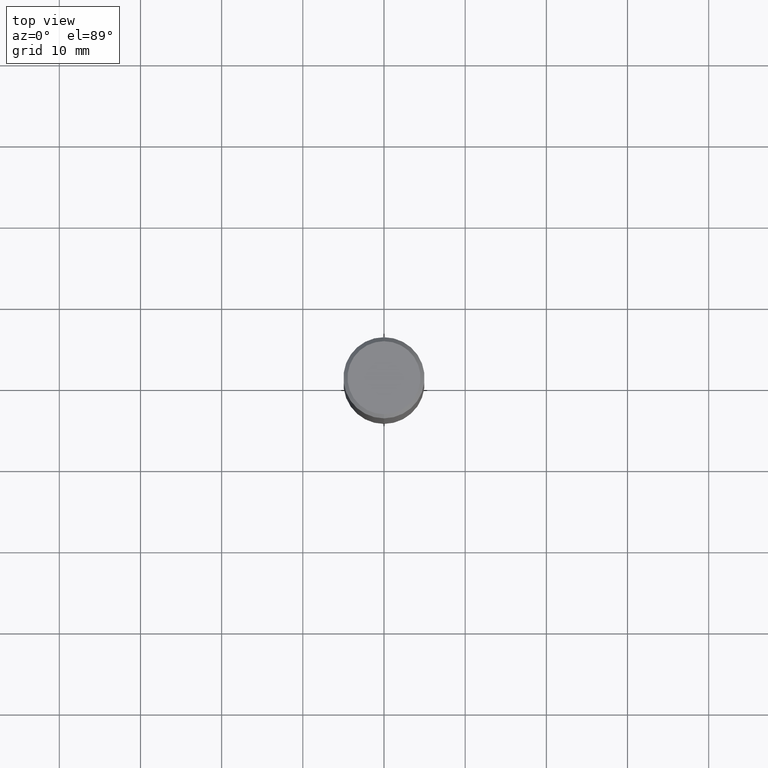
[diagram: clean part render]
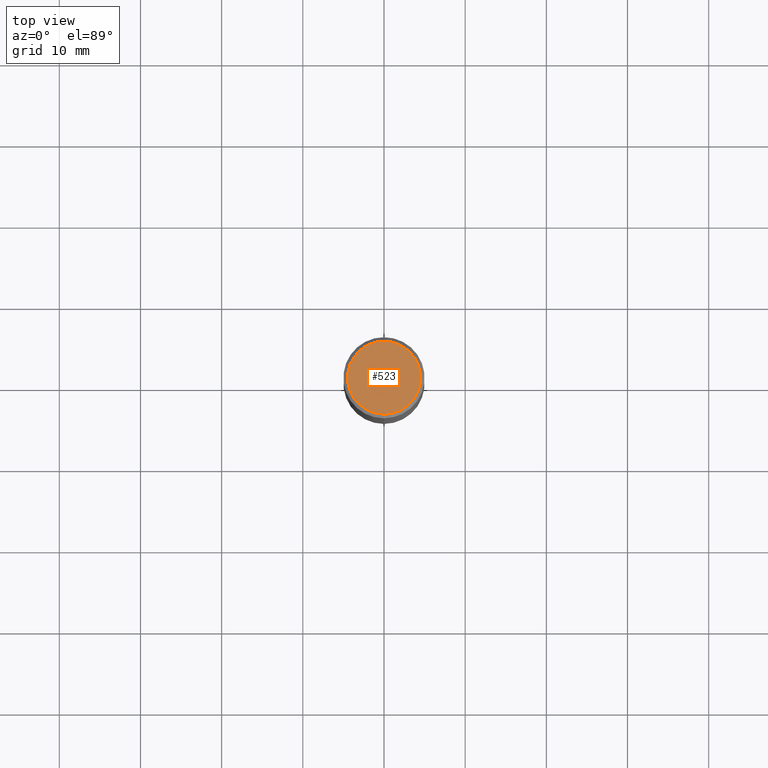
[diagram: same view with one face highlighted and labeled with its STEP entity id]
A machine part, top view. The second image highlights one B-rep face of the part: STEP entity #523.
In plain terms, the highlighted planar face has unit normal (-0, 0, 1).
Its self-contained STEP definition (entity closure, byte-faithful):
#479=VERTEX_POINT('',#1013);
#523=ADVANCED_FACE('',(#1059),#1060,.T.);
#537=EDGE_CURVE('',#713,#479,#1074,.T.);
#581=EDGE_CURVE('',#479,#713,#1123,.T.);
#713=VERTEX_POINT('',#1272);
#1013=CARTESIAN_POINT('',(5.5107285922007E-016,-4.5,0.0));
#1059=FACE_OUTER_BOUND('',#3480,.T.);
#1060=PLANE('',#3481);
#1074=CIRCLE('',#3529,4.5);
#1123=CIRCLE('',#3629,4.5);
#1272=CARTESIAN_POINT('',(0.0,4.5,0.0));
#3480=EDGE_LOOP('',(#5658,#5659));
#3481=AXIS2_PLACEMENT_3D('',#5660,#5661,#5662);
#3529=AXIS2_PLACEMENT_3D('',#5671,#5672,#5673);
#3629=AXIS2_PLACEMENT_3D('',#5753,#5754,#5755);
#5658=ORIENTED_EDGE('',*,*,#537,.F.);
#5659=ORIENTED_EDGE('',*,*,#581,.F.);
#5660=CARTESIAN_POINT('',(0.0,2.25,0.0));
#5661=DIRECTION('',(-0.0,0.0,1.0));
#5662=DIRECTION('',(0.0,-1.0,0.0));
#5671=CARTESIAN_POINT('',(0.0,0.0,0.0));
#5672=DIRECTION('',(0.0,0.0,-1.0));
#5673=DIRECTION('',(0.0,1.0,0.0));
#5753=CARTESIAN_POINT('',(0.0,0.0,0.0));
#5754=DIRECTION('',(0.0,0.0,-1.0));
#5755=DIRECTION('',(0.0,1.0,0.0));